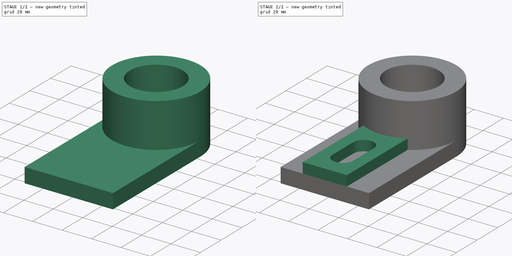
[diagram: build sequence overview — one tinted view per stage of 2, left to right]
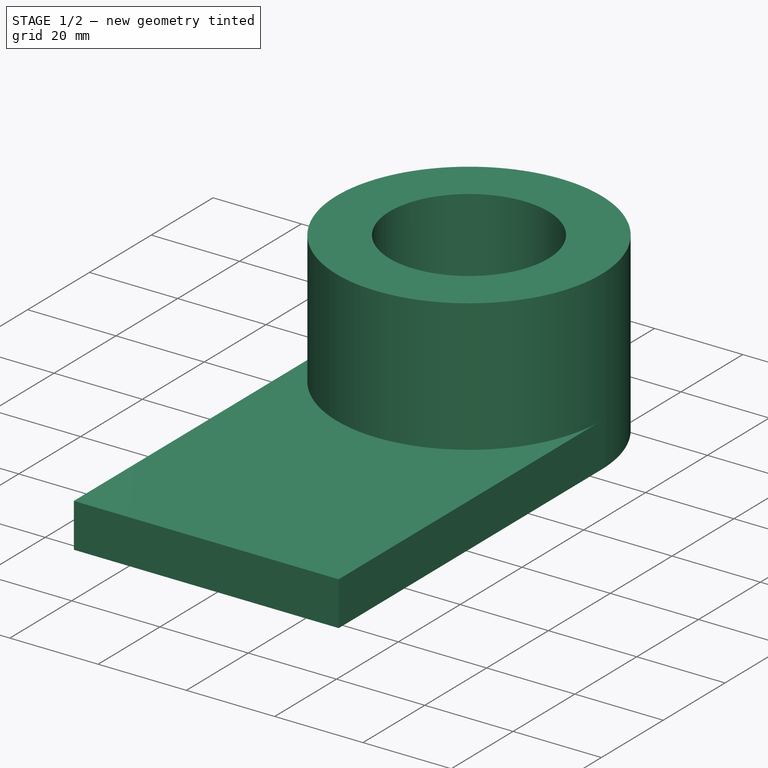
[diagram: stage 1 of 2 — iso view after this stage's code; geometry added in this stage tinted green]
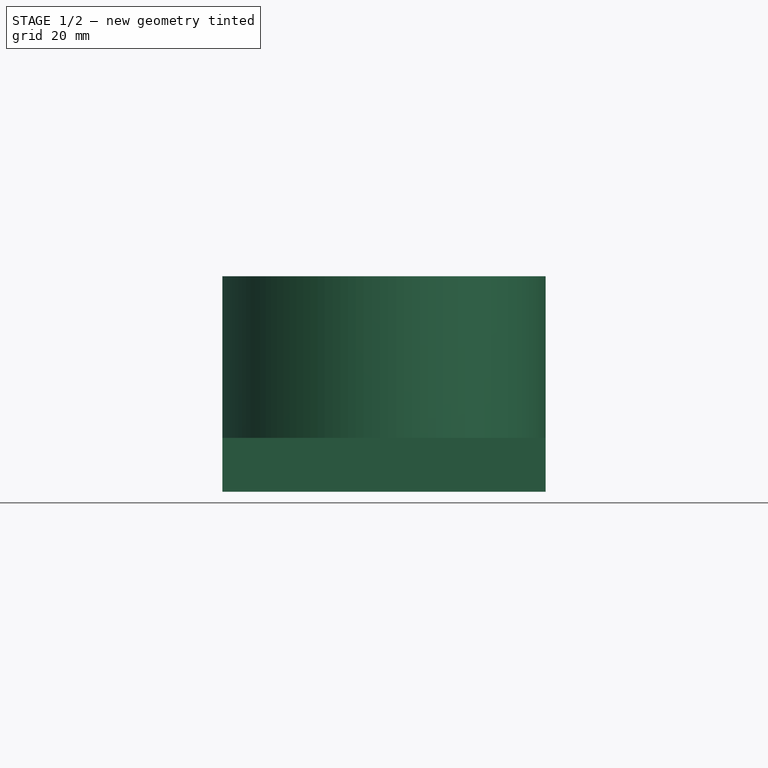
[diagram: stage 1 of 2 — front view after this stage's code; geometry added in this stage tinted green]
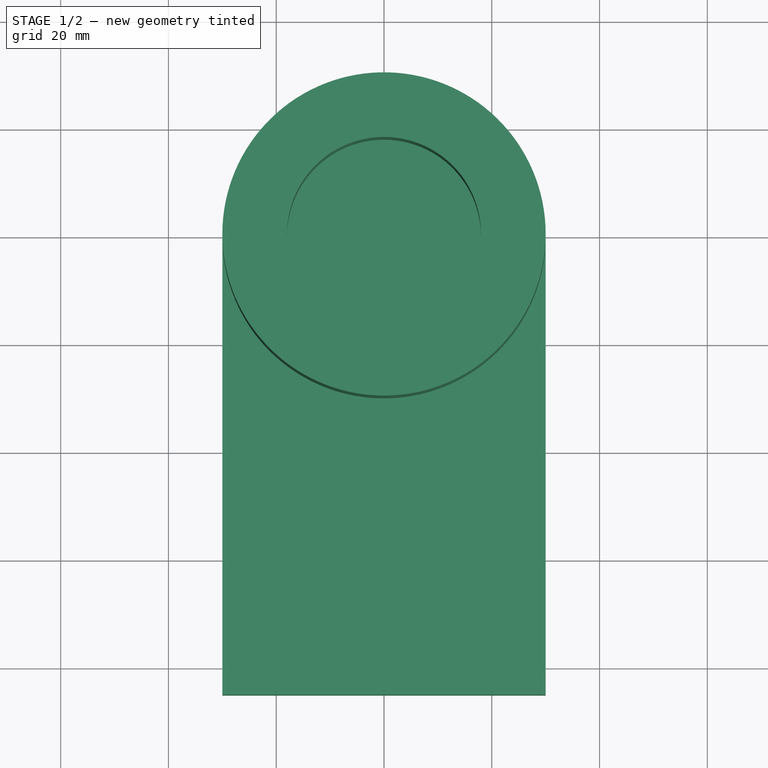
[diagram: stage 1 of 2 — top view after this stage's code; geometry added in this stage tinted green]
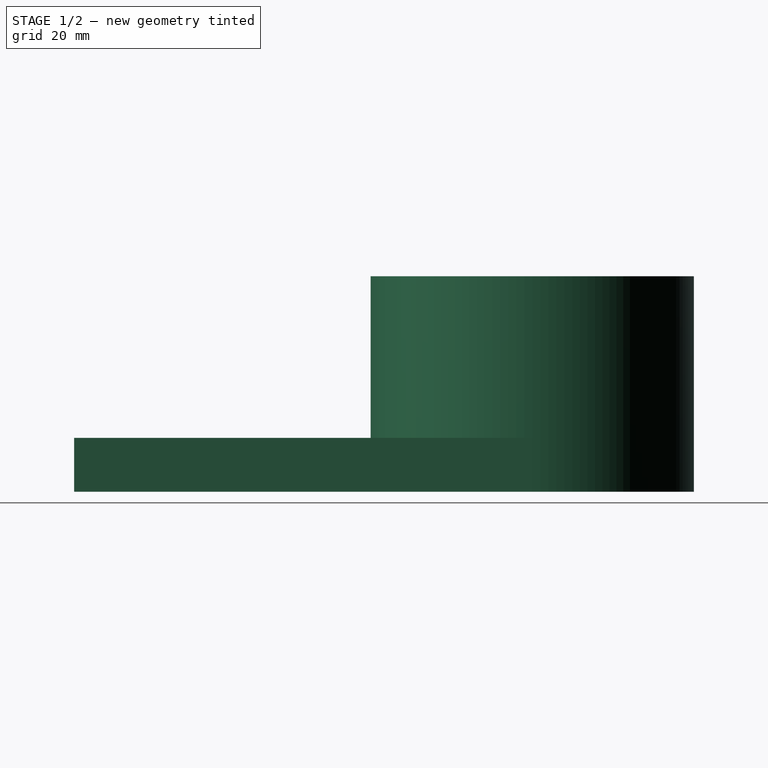
[diagram: stage 1 of 2 — right view after this stage's code; geometry added in this stage tinted green]
FCSTD DOCUMENT  (FreeCAD 0.19R24267 +148 (Git))
Label: Ex13
License: All rights reserved
LicenseURL: http://en.wikipedia.org/wiki/All_rights_reserved
objects: Sketcher::SketchObject×4, PartDesign::Pad×3, PartDesign::Body×1
note: 11 computed .brp shape members not serialized (recipe doc carries the construction recipe); baked Part::Feature solids carry a one-line shape summary decoded from their .brp

FEATURE [Sketcher::SketchObject] Sketch
  FullyConstrained = false
  MapMode = 5
  Support = -> [XY_Plane]
  sketch-geometry (13):
    g0: Circle CenterX=0 CenterY=0 CenterZ=0 NormalX=0 NormalY=0 NormalZ=1 AngleXU=0 Radius=18
    g1: Circle CenterX=0 CenterY=0 CenterZ=0 NormalX=0 NormalY=0 NormalZ=1 AngleXU=0 Radius=30
    g2: LineSegment StartX=-30 StartY=4.52999e-05 StartZ=0 EndX=-30 EndY=-85 EndZ=0
    g3: LineSegment StartX=30 StartY=4.52965e-05 StartZ=0 EndX=30 EndY=-85 EndZ=0
    g4: LineSegment StartX=30 StartY=-85 StartZ=0 EndX=-30 EndY=-85 EndZ=0
    g5: LineSegment StartX=-15.0085 StartY=-25.9758 StartZ=0 EndX=-15.0085 EndY=-85 EndZ=0
    g6: LineSegment StartX=14.9915 StartY=-25.9857 StartZ=0 EndX=14.9915 EndY=-85 EndZ=0
    g7: ArcOfCircle CenterX=0 CenterY=-47.2864 CenterZ=0 NormalX=0 NormalY=0 NormalZ=1 AngleXU=0 Radius=7 StartAngle=0 EndAngle=3.14159
    g8: ArcOfCircle CenterX=-4e-16 CenterY=-67.2864 CenterZ=0 NormalX=0 NormalY=0 NormalZ=1 AngleXU=0 Radius=7 StartAngle=3.14159 EndAngle=6.28319
    g9: LineSegment StartX=-7 StartY=-47.2864 StartZ=0 EndX=-7 EndY=-67.2864 EndZ=0
    g10: LineSegment StartX=7 StartY=-47.2864 StartZ=0 EndX=7 EndY=-67.2864 EndZ=0
    g11: LineSegment StartX=14.9915 StartY=-85 StartZ=0 EndX=-15.0085 EndY=-85 EndZ=0
    g12: Circle CenterX=-0.000133083 CenterY=-0.40625 CenterZ=0 NormalX=0 NormalY=0 NormalZ=1 AngleXU=0 Radius=29.6489
  constraints (28):
    c: Coincident(g0,g-1)
    c: Coincident(g1,g0)
    c: PointOnObject(g2,g1)
    c: Vertical(g2)
    c: PointOnObject(g3,g1)
    c: Vertical(g3)
    c: Coincident(g4,g3)
    c: Coincident(g4,g2)
    c: Horizontal(g4)
    c: Tangent(g2,g1)
    c: Tangent(g1,g3)
    c: PointOnObject(g5,g1)
    c: PointOnObject(g5,g4)
    c: Vertical(g5)
    c: PointOnObject(g6,g1)
    c: PointOnObject(g6,g4)
    c: Vertical(g6)
    c: Tangent(g7,g10) = 1.5708
    c: Tangent(g7,g9) = -1.5708
    c: Tangent(g9,g8) = -1.5708
    c: Tangent(g10,g8) = 1.5708
    c: Vertical(g9)
    c: Equal(g7,g8)
    c: PointOnObject(g7,g-2)
    c: Coincident(g11,g6)
    c: Coincident(g11,g5)
    c: PointOnObject(g6,g12)
    c: PointOnObject(g5,g12)
FEATURE [Sketcher::SketchObject] Sketch001
  ExternalGeometry = -> [Sketch]
  FullyConstrained = true
  MapMode = 2
  Support = -> [Sketch]
  sketch-geometry (2):
    g0: Circle CenterX=0 CenterY=0 CenterZ=0 NormalX=0 NormalY=0 NormalZ=1 AngleXU=0 Radius=30
    g1: Circle CenterX=0 CenterY=0 CenterZ=0 NormalX=0 NormalY=0 NormalZ=1 AngleXU=0 Radius=18
  constraints (4):
    c: Coincident(g0,g-1)
    c: Coincident(g1,g0)
    c: Diameter(g0) = 60
    c: Diameter(g1) = 36
FEATURE [PartDesign::Pad] Pad  label="Circle"
  Direction = (1,1,1)
  Length = 30
  Length2 = 100
  Profile = -> Sketch001
  Type = 0
FEATURE [Sketcher::SketchObject] Sketch002
  ExternalGeometry = -> [Sketch,Pad]
  FullyConstrained = true
  MapMode = 2
  Support = -> [Sketch]
  sketch-geometry (4):
    g0: ArcOfCircle CenterX=3.6e-15 CenterY=0 CenterZ=0 NormalX=0 NormalY=0 NormalZ=1 AngleXU=0 Radius=30 StartAngle=1.50988e-06 EndAngle=3.14159
    g1: LineSegment StartX=-30 StartY=4.52999e-05 StartZ=0 EndX=-30 EndY=-85 EndZ=0
    g2: LineSegment StartX=30 StartY=4.52965e-05 StartZ=0 EndX=30 EndY=-85 EndZ=0
    g3: LineSegment StartX=30 StartY=-85 StartZ=0 EndX=-30 EndY=-85 EndZ=0
  constraints (10):
    c: Coincident(g0,g-1)
    c: Diameter(g0) = 60
    c: Coincident(g1,g-3)
    c: Coincident(g1,g-6)
    c: Coincident(g2,g-5)
    c: Coincident(g2,g-6)
    c: Coincident(g3,g2)
    c: Coincident(g3,g1)
    c: Coincident(g0,g2)
    c: Coincident(g0,g1)
FEATURE [PartDesign::Pad] Pad001  label="Base"
  BaseFeature = -> Pad
  Direction = (1,1,1)
  Length = 10
  Length2 = 100
  Profile = -> Sketch002
  Reversed = true
  Type = 0
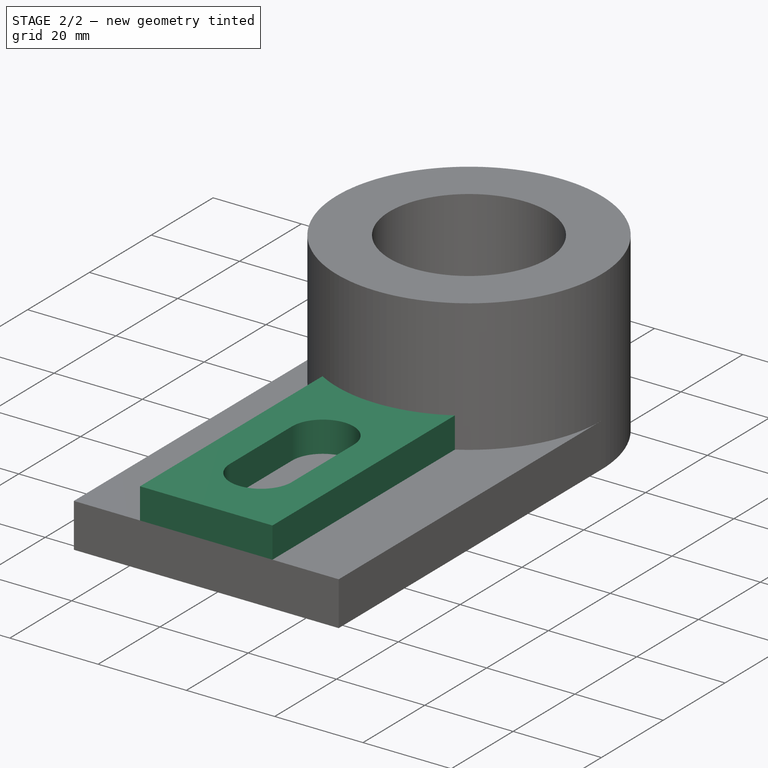
[diagram: stage 2 of 2 — iso view after this stage's code; geometry added in this stage tinted green]
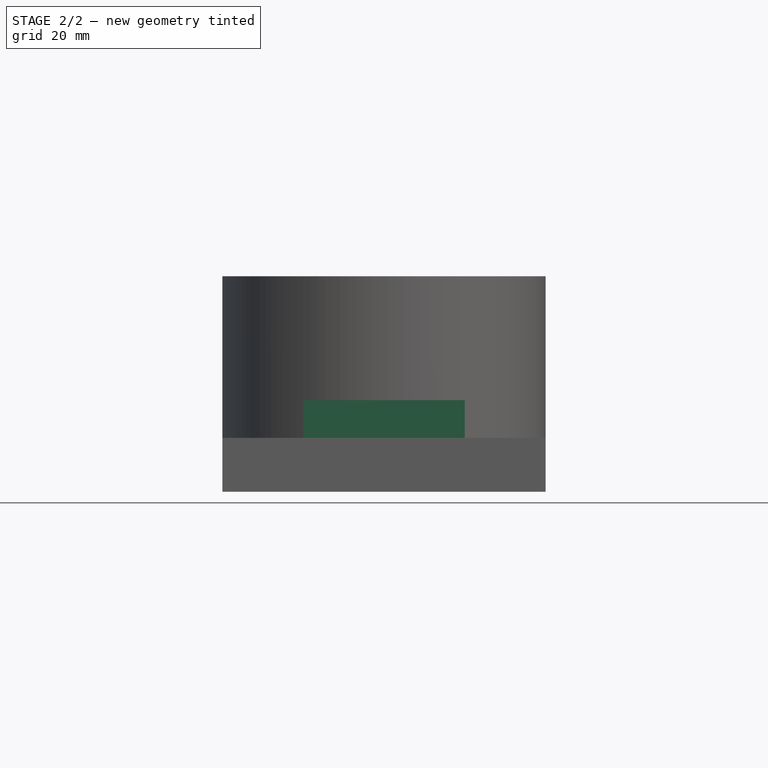
[diagram: stage 2 of 2 — front view after this stage's code; geometry added in this stage tinted green]
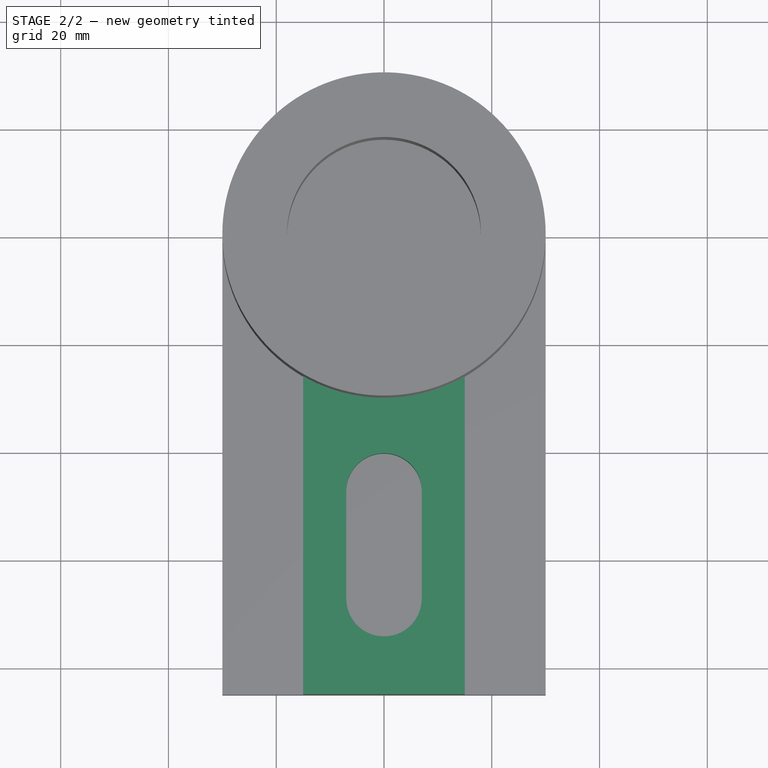
[diagram: stage 2 of 2 — top view after this stage's code; geometry added in this stage tinted green]
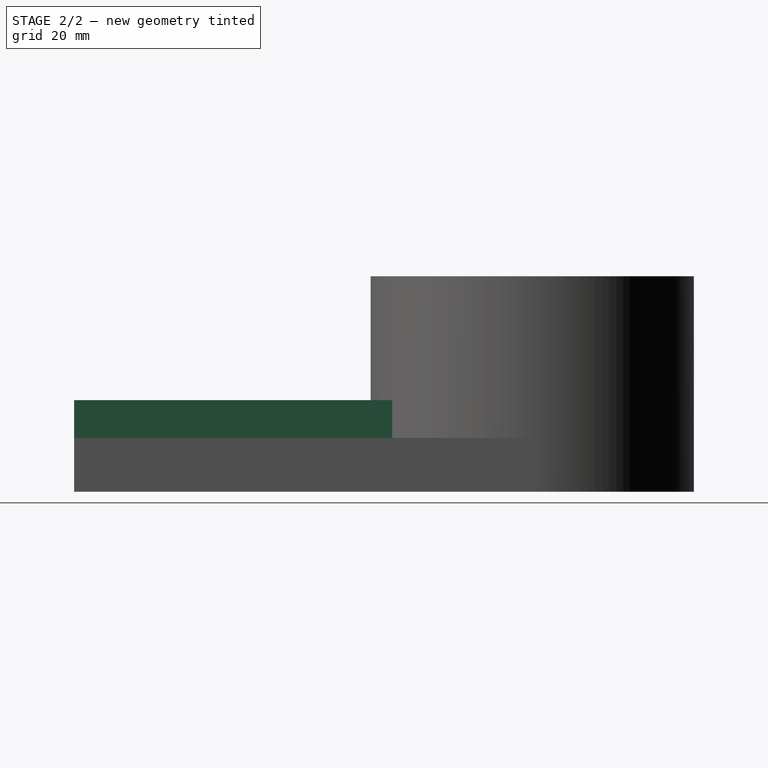
[diagram: stage 2 of 2 — right view after this stage's code; geometry added in this stage tinted green]
FEATURE [Sketcher::SketchObject] Sketch003
  ExternalGeometry = -> [Pad001,Sketch]
  FullyConstrained = true
  MapMode = 2
  Support = -> [Sketch]
  sketch-geometry (8):
    g0: ArcOfCircle CenterX=-2.5e-15 CenterY=2.9e-15 CenterZ=0 NormalX=0 NormalY=0 NormalZ=1 AngleXU=0 Radius=30 StartAngle=4.18846 EndAngle=5.23566
    g1: LineSegment StartX=-15.0085 StartY=-25.9758 StartZ=0 EndX=-15.0085 EndY=-85 EndZ=0
    g2: LineSegment StartX=14.9915 StartY=-85 StartZ=0 EndX=-15.0085 EndY=-85 EndZ=0
    g3: LineSegment StartX=14.9915 StartY=-85 StartZ=0 EndX=14.9915 EndY=-25.9857 EndZ=0
    g4: ArcOfCircle CenterX=0 CenterY=-47.2864 CenterZ=0 NormalX=0 NormalY=0 NormalZ=1 AngleXU=0 Radius=7 StartAngle=5.283e-13 EndAngle=3.14159
    g5: ArcOfCircle CenterX=4.7408e-12 CenterY=-67.2864 CenterZ=0 NormalX=0 NormalY=0 NormalZ=1 AngleXU=0 Radius=7 StartAngle=3.14159 EndAngle=6.28319
    g6: LineSegment StartX=-7 StartY=-47.2864 StartZ=0 EndX=-7 EndY=-67.2864 EndZ=0
    g7: LineSegment StartX=7 StartY=-47.2864 StartZ=0 EndX=7 EndY=-67.2864 EndZ=0
  constraints (18):
    c: Coincident(g0,g-4)
    c: Coincident(g0,g-5)
    c: Tangent(g0,g-3)
    c: Coincident(g1,g0)
    c: Coincident(g1,g-4)
    c: Coincident(g2,g-5)
    c: Coincident(g2,g1)
    c: Coincident(g3,g2)
    c: Coincident(g3,g0)
    c: Tangent(g4,g7) = 1.5708
    c: Tangent(g4,g6) = -1.5708
    c: Tangent(g6,g5) = -1.5708
    c: Tangent(g7,g5) = 1.5708
    c: Vertical(g6)
    c: Equal(g4,g5)
    c: Coincident(g4,g-7)
    c: Tangent(g5,g-9)
    c: Radius(g4) = 7
FEATURE [PartDesign::Pad] Pad002  label="Middle piece"
  BaseFeature = -> Pad001
  Direction = (1,1,1)
  Length = 7
  Length2 = 100
  Profile = -> Sketch003
  Type = 0
FEATURE [PartDesign::Body] Body
  Group = -> [Sketch,Sketch001,Pad,Sketch002,Pad001,Sketch003,Pad002]
  Origin = -> Origin
  Tip = -> Pad002
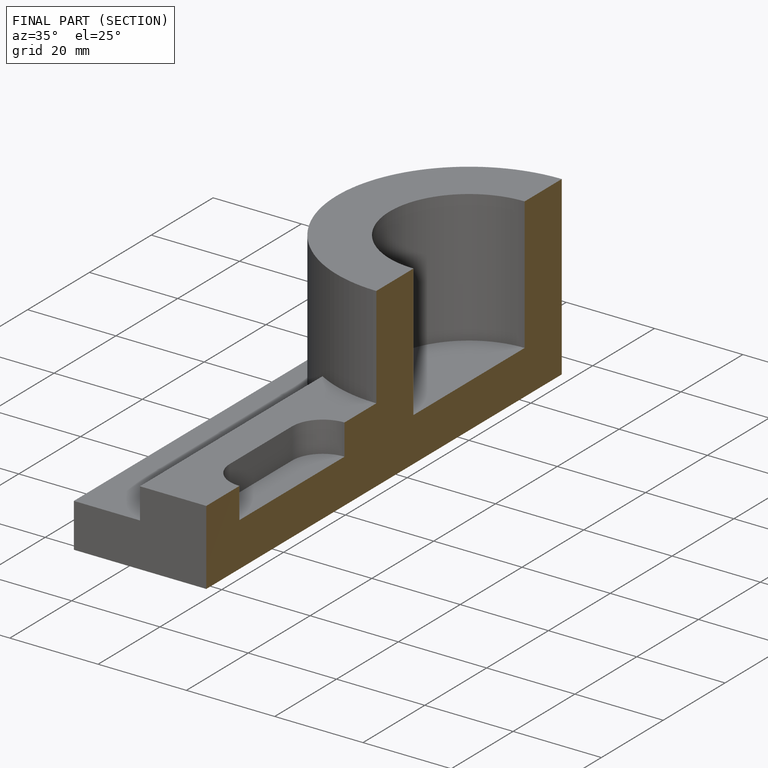
[diagram: finished part — half-section view (interior)]
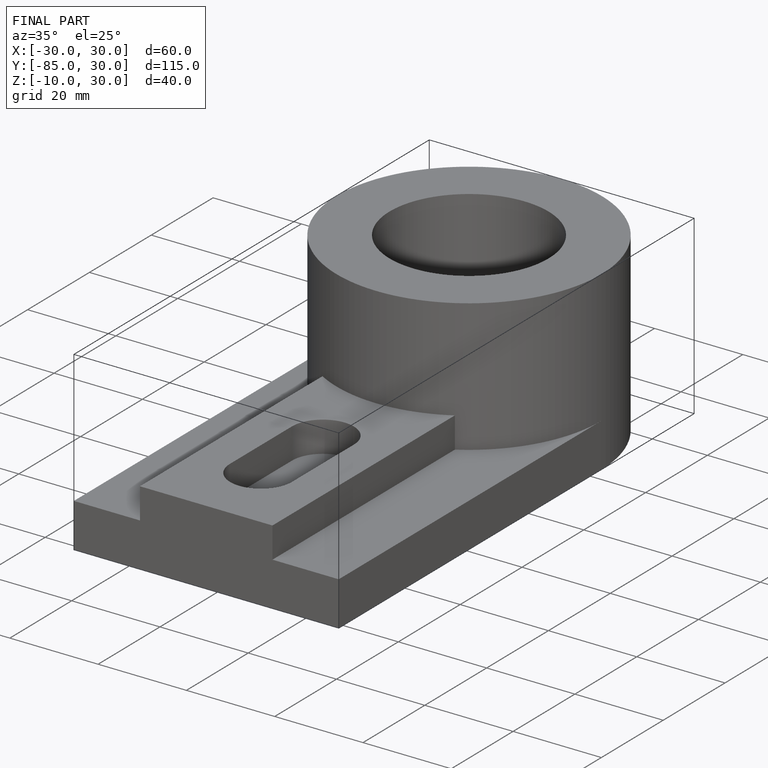
[diagram: finished part — iso view with bounding-box wireframe]
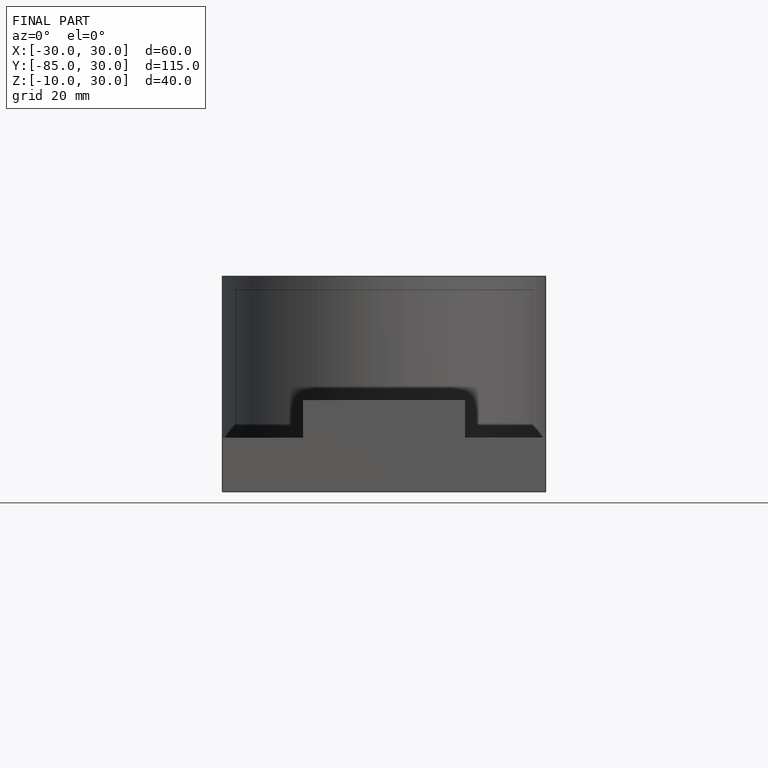
[diagram: finished part — front view with bounding-box wireframe]
